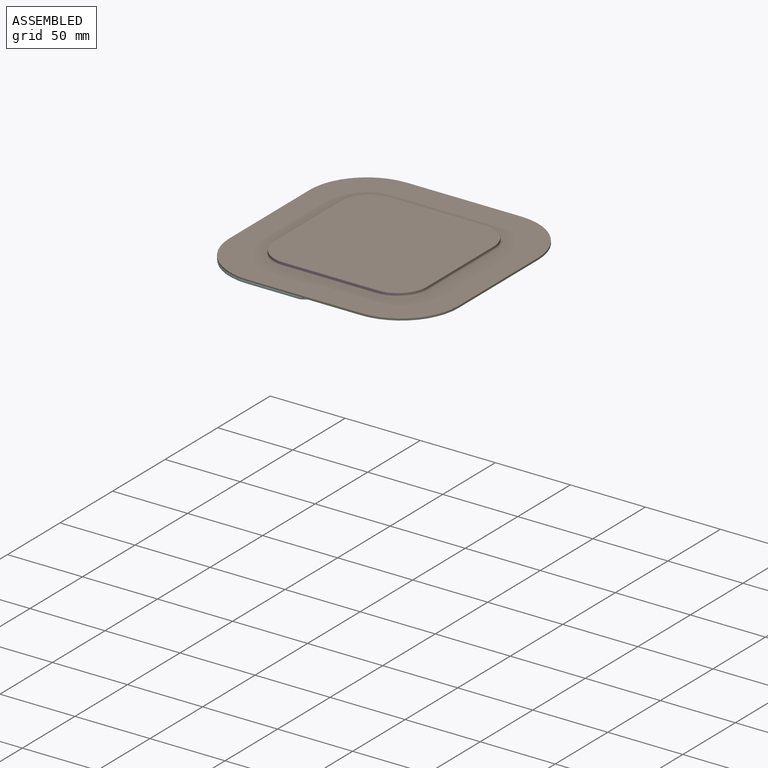
[diagram: assembled view]
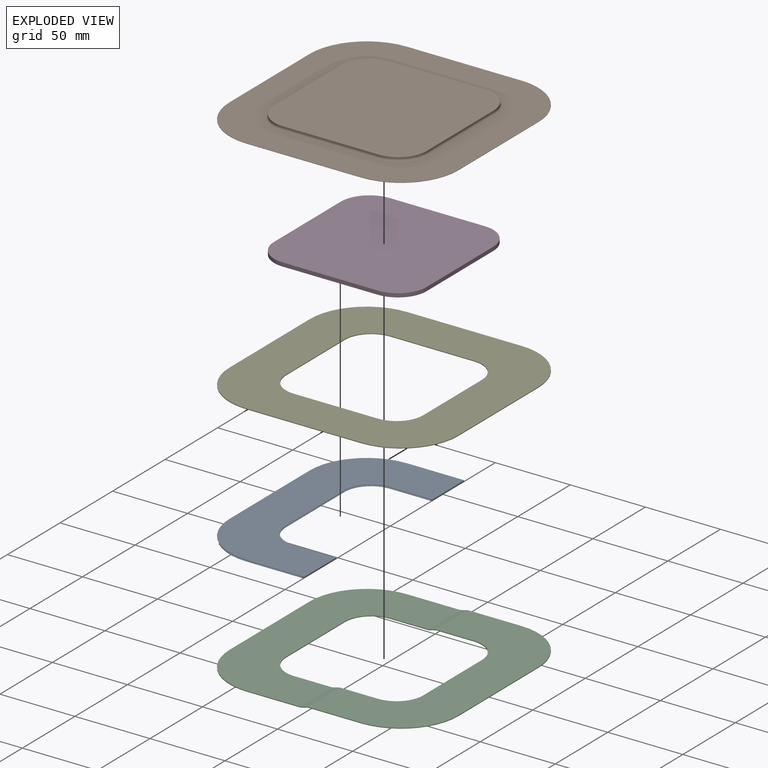
[diagram: exploded view]
GUIDED TOUR — MATED ASSEMBLY (Onshape document 73367925c3eeb1f5ac1c1983, AutoMate assembly 73367925c3eeb1f5ac1c1983_998282d3dac52252b863bf41_79ec40ff0eccfe6479f89f1b_default)

This assembly has 5 components, labeled P0..P4 below (a component is one placed occurrence of a part; the same part can appear more than once), held together by 4 mates. A mate is a constraint between two components; its type names the relative motion it leaves free:
  FASTENED — locks the two components together rigidly (no relative motion).
Axis/direction vectors are unit vectors and 'through' points are millimeter coordinates, both in the assembly's world frame.

MATES
  1. FASTENED "Fastened 1": P1 <-> P3, direction (0.000, 0.000, -1.000) through (-31.08, 50.90, 1.10) mm
  2. FASTENED "Fastened 3": P4 <-> P0, direction (0.000, 0.000, -1.000) through (-75.53, 38.46, -1.95) mm
  3. FASTENED "Fastened 2": P1 <-> P4, direction (0.000, 0.000, -1.000) through (-37.43, 76.56, -1.44) mm
  4. FASTENED "Fastened 4": P4 <-> P2, direction (0.000, 0.000, -1.000) through (76.87, 38.46, -1.95) mm

ASSEMBLY ORDER
  1. P3 — the base component [order verified]
  2. P1 [order verified]
  3. P4 [order verified]
  4. P0 [order verified]
  5. P2 [order verified]
(P1 verified with a relaxed clearance tolerance: the source model stores slight part interference there.)
Order-tag legend:
  [order verified] — this step's position reverses a verified removal order: the component was checked to insert without passing through the ones already placed.

Of the 5 components, 2 carry the full construction recipe — the FeatureScript program that regenerates the part's solid from scratch; the rest are supplied as boundary geometry only.
Each toured component is shown spotlighted twice — in the assembled view, then in the exploded view, where a leader line traces a displaced component back to its assembled socket (saturated green if recipe-attached, orange if geometry-only; every other component desaturated gray) — followed by its recipe or geometry summary and the mates that hold it.
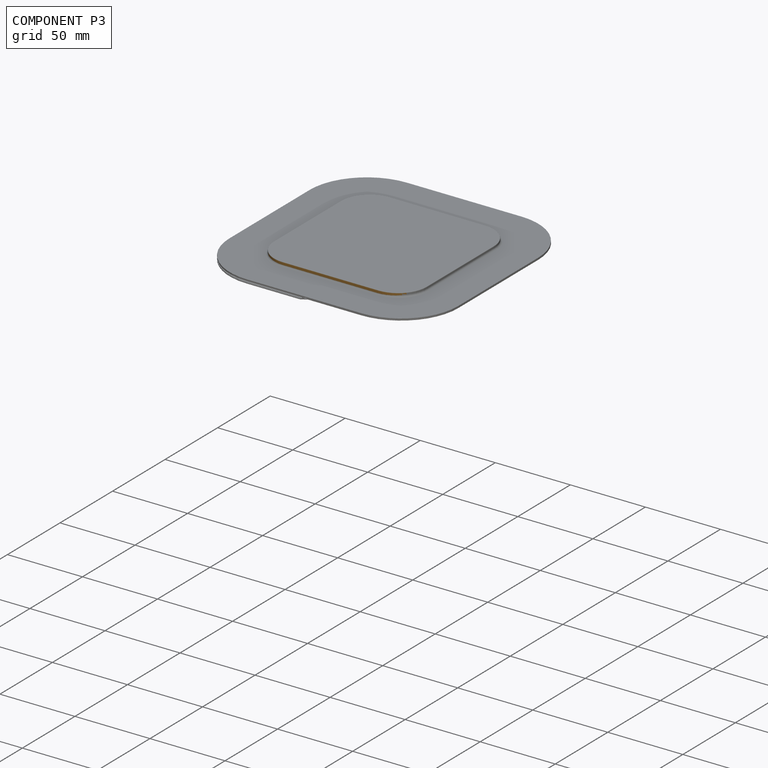
[diagram: component P3 — assembled]
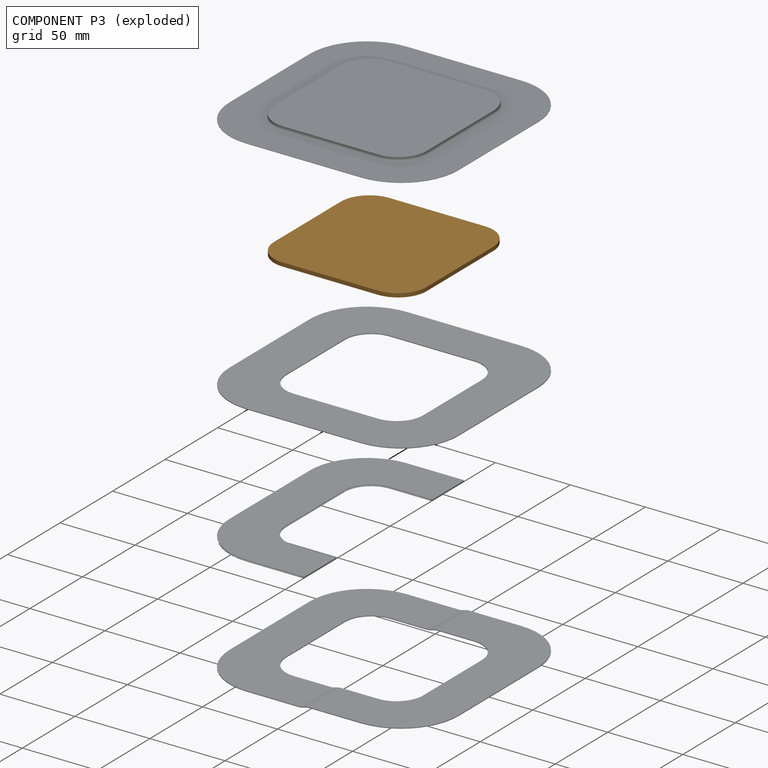
[diagram: component P3 — exploded]
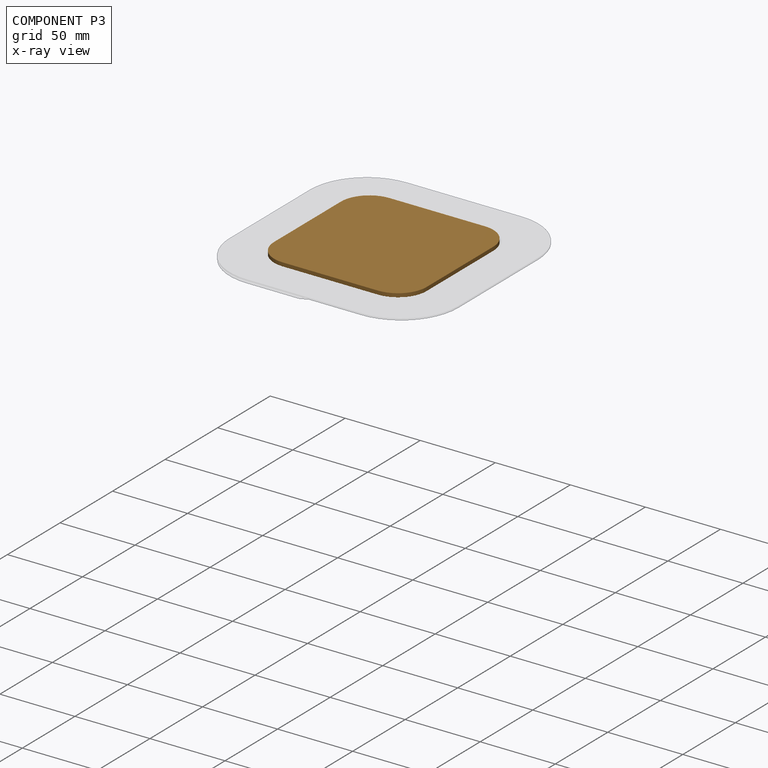
[diagram: component P3 — x-ray view]
COMPONENT P3 — geometry summary (no construction recipe available for this part):
  bounding box: 101.6 x 101.6 x 2.5 mm
  B-rep topology: 1 solid, 10 faces, 48 edges
  volume: 25428 mm^3 (97% of its bounding box)
  symmetry: 2-fold rotationally symmetric about the x axis; 2-fold rotationally symmetric about the y axis; 4-fold rotationally symmetric about the z axis; mirror-symmetric across its x mid-plane, y mid-plane, z mid-plane
Held by: FASTENED mate "Fastened 1" to P1.
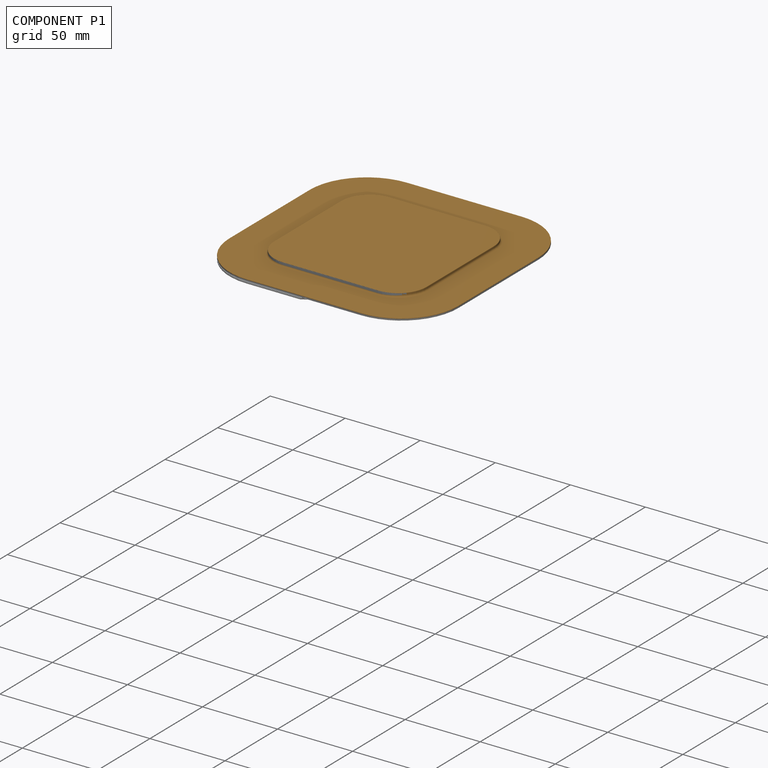
[diagram: component P1 — assembled]
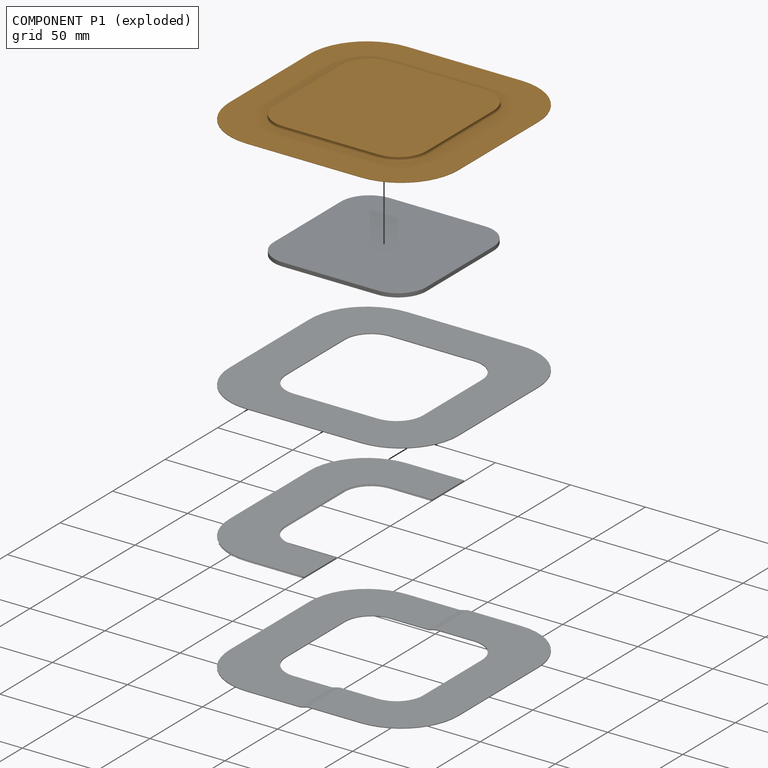
[diagram: component P1 — exploded]
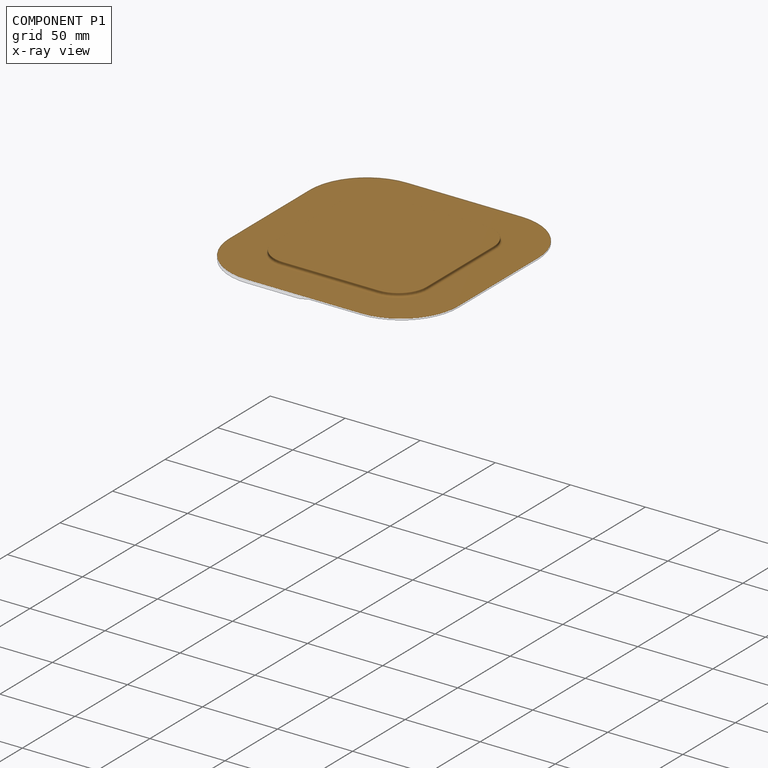
[diagram: component P1 — x-ray view]
COMPONENT P1 — geometry summary (no construction recipe available for this part):
  bounding box: 152.4 x 152.4 x 2.8 mm
  B-rep topology: 1 solid, 60 faces, 272 edges
  volume: 5714 mm^3 (9% of its bounding box)
  symmetry: 4-fold rotationally symmetric about the z axis; mirror-symmetric across its x mid-plane, y mid-plane
Held by: FASTENED mate "Fastened 1" to P3; FASTENED mate "Fastened 2" to P4.
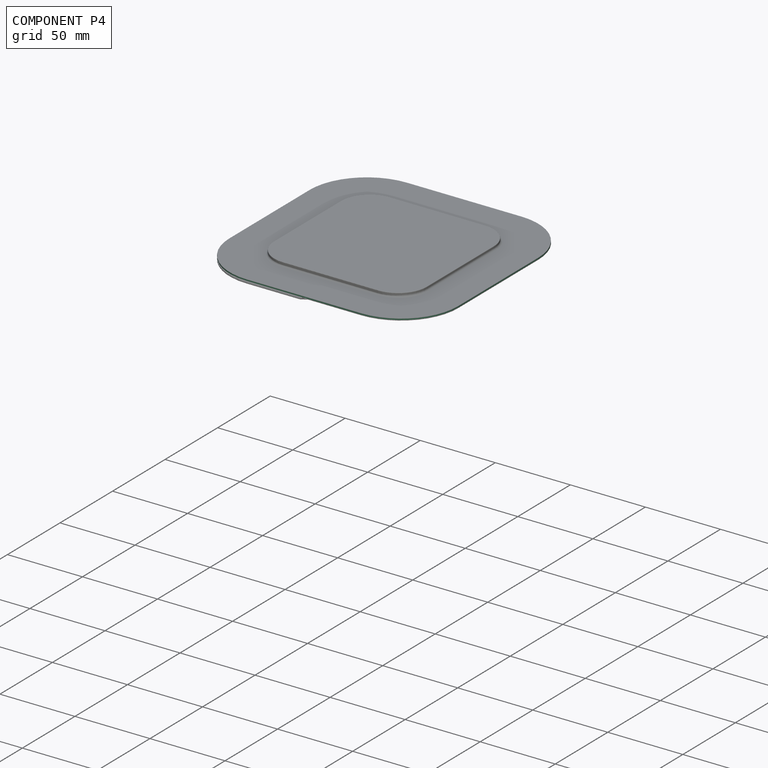
[diagram: component P4 — assembled]
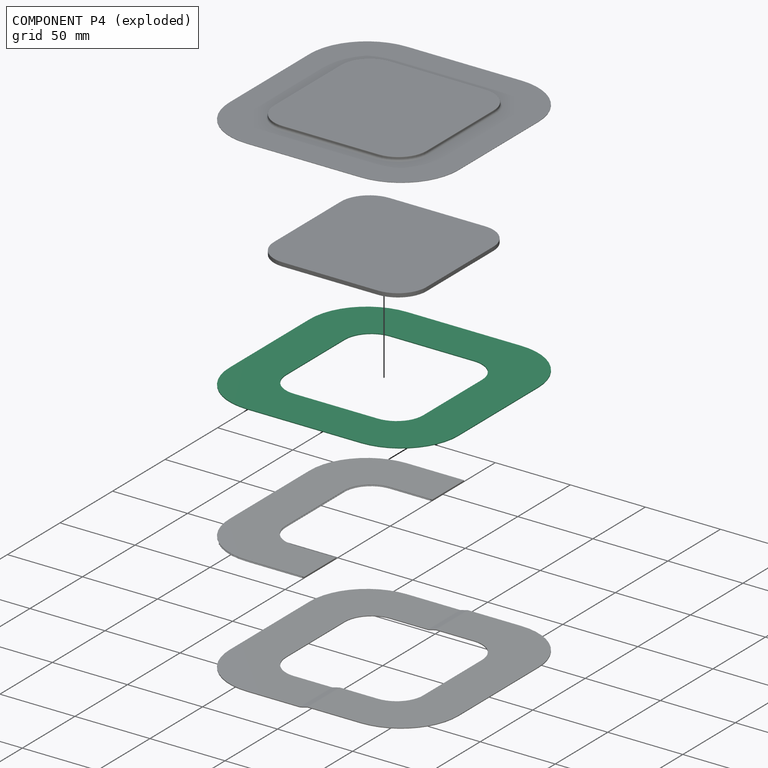
[diagram: component P4 — exploded]
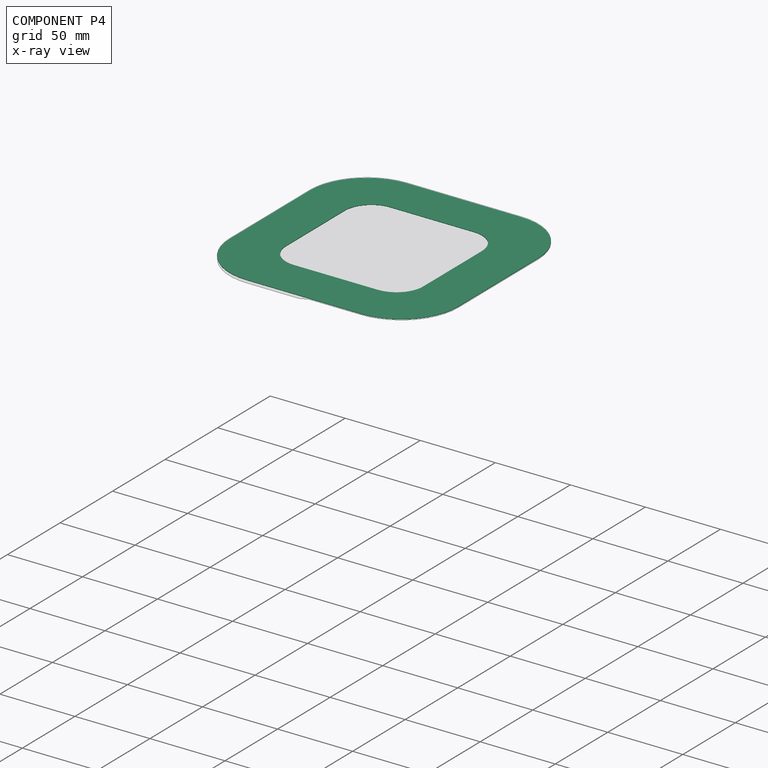
[diagram: component P4 — x-ray view]
COMPONENT P4 — recipe-attached (CADFS 00854232, mesh-verified: the recipe's output STEP matches this component's geometry to below the mesh-comparison resolution (tessellation chordal tolerance ~0.323 mm)).
Held by: FASTENED mate "Fastened 3" to P0; FASTENED mate "Fastened 2" to P1; FASTENED mate "Fastened 4" to P2.
Construction recipe (FeatureScript — the CAD program that rebuilds this solid; sketch coordinates are in the units given by the * unit suffixes, e.g. mm):

FeatureScript 1511;
import(path : "onshape/std/geometry.fs", version : "1511.0");
import(path : "onshape/std/common.fs", version : "1511.0");
const mm = millimeter;
const VERTEX = EntityType.VERTEX;
const EDGE = EntityType.EDGE;
const FACE = EntityType.FACE;
const BODY = EntityType.BODY;
function v(x, y){return vector(x, y);}
function OD(order){return orderDisambiguation(order);}
function OSD(set){return originalSetDisambiguation(set);}
function TD(topology){return topologyDisambiguation(topology);}
function TDD(query){return trueDependencyDisambiguation(query);}
function sQuery(a, b, c) {return sketchEntityQuery(a, b, c);}

annotation { "Feature Type Name" : "Feature", "Feature Type Description" : "" }
export const myFeature = defineFeature(function(context is Context, id is Id, definition is map)
    precondition{}
    {
        {
            var Q0;
            Q0=qCreatedBy(makeId("Top.planeOp"),FACE);
            var sketch = newSketch(context, id + "F0", { "sketchPlane" : qUnion([Q0])});
            skLineSegment(sketch, "E0.bottom", {"start": v(38.1, 76.2) * mm, "end": v(-38.1, 76.2) * mm});
            skLineSegment(sketch, "E0.top", {"start": v(38.1, -76.2) * mm, "end": v(-38.1, -76.2) * mm});
            skLineSegment(sketch, "E0.left", {"start": v(76.2, 38.1) * mm, "end": v(76.2, -38.1) * mm});
            skLineSegment(sketch, "E0.right", {"start": v(-76.2, 38.1) * mm, "end": v(-76.2, -38.1) * mm});
            skPoint(sketch, "E0.middle", {"position": v(0, 0) * mm});
            skPoint(sketch, "E1.visualSharp", {"position": v(-76.2, 76.2) * mm});
            skArc(sketch, "E1.filletArc", {"start": v(-38.1, 76.2) * mm, "mid": v(-65.04, 65.04) * mm, "end": v(-76.2, 38.1) * mm});
            skPoint(sketch, "E2.visualSharp", {"position": v(76.2, 76.2) * mm});
            skArc(sketch, "E2.filletArc", {"start": v(76.2, 38.1) * mm, "mid": v(65.04, 65.04) * mm, "end": v(38.1, 76.2) * mm});
            skPoint(sketch, "E3.visualSharp", {"position": v(76.2, -76.2) * mm});
            skArc(sketch, "E3.filletArc", {"start": v(38.1, -76.2) * mm, "mid": v(65.04, -65.04) * mm, "end": v(76.2, -38.1) * mm});
            skPoint(sketch, "E4.visualSharp", {"position": v(-76.2, -76.2) * mm});
            skArc(sketch, "E4.filletArc", {"start": v(-76.2, -38.1) * mm, "mid": v(-65.04, -65.04) * mm, "end": v(-38.1, -76.2) * mm});
            skLineSegment(sketch, "E5.bottom", {"start": v(27.94, 45.72) * mm, "end": v(-27.94, 45.72) * mm});
            skLineSegment(sketch, "E5.top", {"start": v(27.94, -45.72) * mm, "end": v(-27.94, -45.72) * mm});
            skLineSegment(sketch, "E5.left", {"start": v(45.72, 27.94) * mm, "end": v(45.72, -27.94) * mm});
            skLineSegment(sketch, "E5.right", {"start": v(-45.72, 27.94) * mm, "end": v(-45.72, -27.94) * mm});
            skPoint(sketch, "E6.visualSharp", {"position": v(-45.72, 45.72) * mm});
            skArc(sketch, "E6.filletArc", {"start": v(-27.94, 45.72) * mm, "mid": v(-40.51, 40.51) * mm, "end": v(-45.72, 27.94) * mm});
            skPoint(sketch, "E7.visualSharp", {"position": v(45.72, 45.72) * mm});
            skArc(sketch, "E7.filletArc", {"start": v(45.72, 27.94) * mm, "mid": v(40.51, 40.51) * mm, "end": v(27.94, 45.72) * mm});
            skPoint(sketch, "E8.visualSharp", {"position": v(45.72, -45.72) * mm});
            skArc(sketch, "E8.filletArc", {"start": v(27.94, -45.72) * mm, "mid": v(40.51, -40.51) * mm, "end": v(45.72, -27.94) * mm});
            skPoint(sketch, "E9.visualSharp", {"position": v(-45.72, -45.72) * mm});
            skArc(sketch, "E9.filletArc", {"start": v(-45.72, -27.94) * mm, "mid": v(-40.51, -40.51) * mm, "end": v(-27.94, -45.72) * mm});
            skSolve(sketch);
        }
        {
            var Q0;
            Q0 = qSketchRegion(id + "F0", true);
            extrude(context, id + "F1", {"entities" : qUnion([Q0]), "depth" : 0.5 * mm, "offsetDistance" : 25.4 * mm});
        }
    });
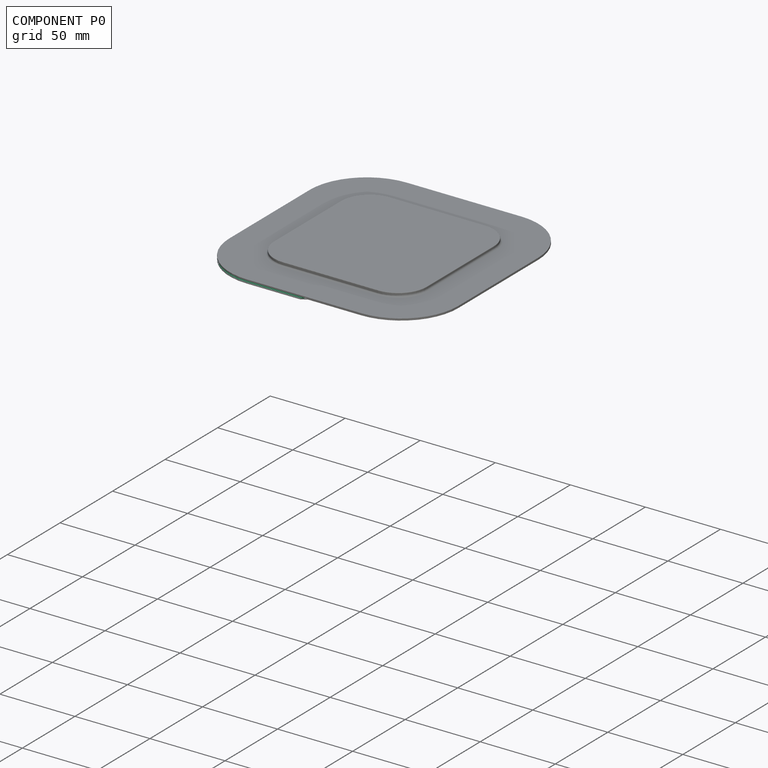
[diagram: component P0 — assembled]
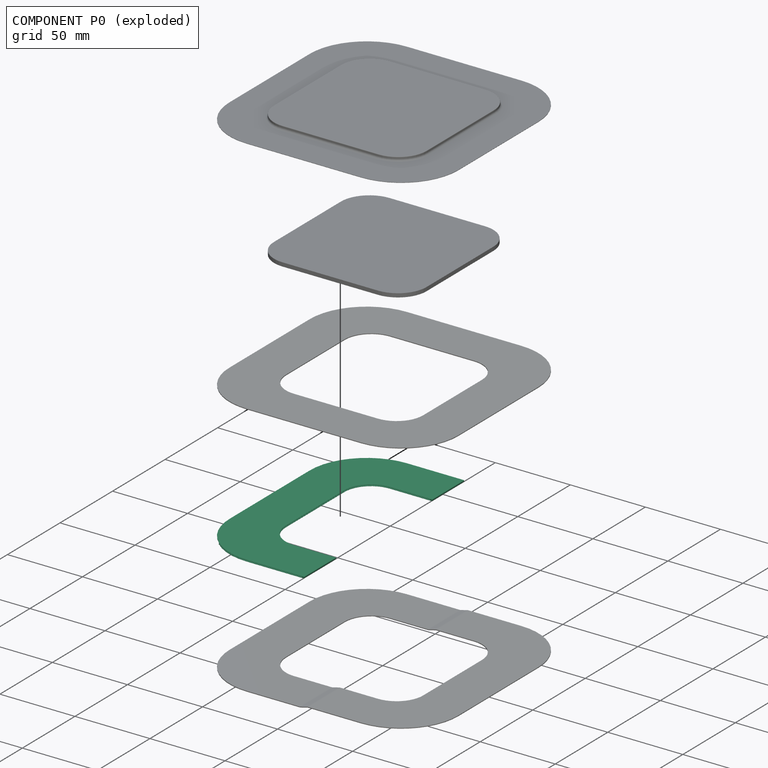
[diagram: component P0 — exploded]
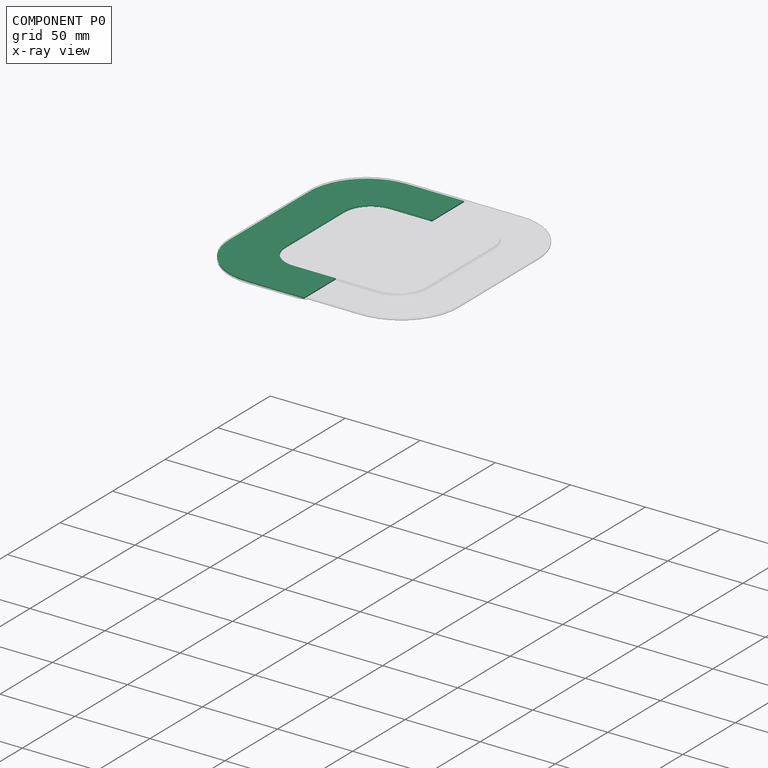
[diagram: component P0 — x-ray view]
COMPONENT P0 — recipe-attached (CADFS 00854233, mesh-verified: the recipe's output STEP matches this component's geometry to below the mesh-comparison resolution (tessellation chordal tolerance ~0.256 mm)).
Held by: FASTENED mate "Fastened 3" to P4.
Construction recipe (FeatureScript — the CAD program that rebuilds this solid; sketch coordinates are in the units given by the * unit suffixes, e.g. mm):

FeatureScript 1511;
import(path : "onshape/std/geometry.fs", version : "1511.0");
import(path : "onshape/std/common.fs", version : "1511.0");
const mm = millimeter;
const VERTEX = EntityType.VERTEX;
const EDGE = EntityType.EDGE;
const FACE = EntityType.FACE;
const BODY = EntityType.BODY;
function v(x, y){return vector(x, y);}
function OD(order){return orderDisambiguation(order);}
function OSD(set){return originalSetDisambiguation(set);}
function TD(topology){return topologyDisambiguation(topology);}
function TDD(query){return trueDependencyDisambiguation(query);}
function sQuery(a, b, c) {return sketchEntityQuery(a, b, c);}

annotation { "Feature Type Name" : "Feature", "Feature Type Description" : "" }
export const myFeature = defineFeature(function(context is Context, id is Id, definition is map)
    precondition{}
    {
        {
            var Q0;
            Q0=qCreatedBy(makeId("Top.planeOp"),FACE);
            var sketch = newSketch(context, id + "F0", { "sketchPlane" : qUnion([Q0])});
            skLineSegment(sketch, "E0.bottom", {"start": v(0, 93) * mm, "end": v(-38.1, 93) * mm});
            skLineSegment(sketch, "E0.top", {"start": v(0, -59.4) * mm, "end": v(-38.1, -59.4) * mm});
            skLineSegment(sketch, "E0.left", {"start": v(0, 93) * mm, "end": v(0, -59.4) * mm});
            skLineSegment(sketch, "E0.right", {"start": v(-76.2, 54.9) * mm, "end": v(-76.2, -21.3) * mm});
            skPoint(sketch, "E1.visualSharp", {"position": v(-76.2, 93) * mm});
            skArc(sketch, "E1.filletArc", {"start": v(-38.1, 93) * mm, "mid": v(-65.04, 81.85) * mm, "end": v(-76.2, 54.9) * mm});
            skPoint(sketch, "E2.visualSharp", {"position": v(-76.2, -59.4) * mm});
            skArc(sketch, "E2.filletArc", {"start": v(-76.2, -21.3) * mm, "mid": v(-65.04, -48.23) * mm, "end": v(-38.1, -59.4) * mm});
            skSolve(sketch);
        }
        {
            var Q0;
            Q0 = qSketchRegion(id + "F0", true);
            extrude(context, id + "F1", {"entities" : qUnion([Q0]), "depth" : 1.02 * mm, "offsetDistance" : 25.4 * mm});
        }
        {
            var Q0;
            Q0=makeQuery(id+"F1.opExtrude","SWEPT_FACE",FACE,{"disambiguationData":[OSD([sQuery(id+"F0.wireOp",EDGE,"E0.right")])]});
            var sketch = newSketch(context, id + "F2", { "sketchPlane" : qUnion([Q0])});
            skLineSegment(sketch, "E3.bottom", {"start": v(-98.4, 0.76) * mm, "end": v(61.62, 0.76) * mm});
            skLineSegment(sketch, "E3.top", {"start": v(-98.4, 0.25) * mm, "end": v(61.62, 0.25) * mm});
            skLineSegment(sketch, "E3.left", {"start": v(-98.4, 0.76) * mm, "end": v(-98.4, 0.25) * mm});
            skLineSegment(sketch, "E3.right", {"start": v(61.62, 0.76) * mm, "end": v(61.62, 0.25) * mm});
            skSolve(sketch);
        }
        {
            var Q0;
            Q0 = qSketchRegion(id + "F2", true);
            extrude(context, id + "F3", {"entities" : qUnion([Q0]), "operationType" : NewBodyOperationType.REMOVE, "oppositeDirection" : true, "depth" : 74.93 * mm, "offsetDistance" : 25.4 * mm});
        }
        {
            var Q0;
            Q0=makeQuery(id+"F1.opExtrude","CAP_FACE",FACE,{"disambiguationData":[OSD([sQuery(id+"F0.wireOp",EDGE,"E0.bottom"),sQuery(id+"F0.wireOp",EDGE,"E0.top"),sQuery(id+"F0.wireOp",EDGE,"E0.left"),sQuery(id+"F0.wireOp",EDGE,"E0.right"),sQuery(id+"F0.wireOp",EDGE,"E1.filletArc"),sQuery(id+"F0.wireOp",EDGE,"E2.filletArc")])],"isStart":false});
            var sketch = newSketch(context, id + "F4", { "sketchPlane" : qUnion([Q0])});
            skLineSegment(sketch, "E4.bottom", {"start": v(-98.2, 105.34) * mm, "end": v(-63.5, 105.34) * mm});
            skLineSegment(sketch, "E4.top", {"start": v(-98.2, -79.26) * mm, "end": v(-63.5, -79.26) * mm});
            skLineSegment(sketch, "E4.left", {"start": v(-98.2, 105.34) * mm, "end": v(-98.2, -79.26) * mm});
            skLineSegment(sketch, "E4.right", {"start": v(-63.5, 105.34) * mm, "end": v(-63.5, -79.26) * mm});
            skSolve(sketch);
        }
        {
            var Q0;
            Q0 = qSketchRegion(id + "F4", true);
            extrude(context, id + "F5", {"entities" : qUnion([Q0]), "operationType" : NewBodyOperationType.REMOVE, "oppositeDirection" : true, "depth" : 0.5 * mm, "offsetDistance" : 25.4 * mm});
        }
        {
            var Q0;
            Q0=makeQuery(id+"F1.opExtrude","CAP_EDGE",EDGE,{"disambiguationData":[OSD([sQuery(id+"F0.wireOp",EDGE,"E0.left")])],"isStart":false});
            fillet(context, id + "F6", {"entities" : qUnion([Q0]), "radius" : 0.25 * mm, "tangentPropagation" : true, "allowEdgeOverflow" : false});
        }
        {
            var Q0;
            Q0=makeQuery(id+"F1.opExtrude","CAP_EDGE",EDGE,{"disambiguationData":[OSD([sQuery(id+"F0.wireOp",EDGE,"E0.left")])],"isStart":true});
            fillet(context, id + "F7", {"entities" : qUnion([Q0]), "radius" : 0.25 * mm, "tangentPropagation" : true, "allowEdgeOverflow" : false});
        }
        {
            var Q0;
            Q0=makeQuery(id+"F1.opExtrude","CAP_FACE",FACE,{"disambiguationData":[OSD([sQuery(id+"F0.wireOp",EDGE,"E0.bottom"),sQuery(id+"F0.wireOp",EDGE,"E0.top"),sQuery(id+"F0.wireOp",EDGE,"E0.left"),sQuery(id+"F0.wireOp",EDGE,"E0.right"),sQuery(id+"F0.wireOp",EDGE,"E1.filletArc"),sQuery(id+"F0.wireOp",EDGE,"E2.filletArc")])],"isStart":false});
            var sketch = newSketch(context, id + "F8", { "sketchPlane" : qUnion([Q0])});
            skLineSegment(sketch, "E5.bottom", {"start": v(-28.2, 62.53) * mm, "end": v(40.76, 62.53) * mm});
            skLineSegment(sketch, "E5.top", {"start": v(-28.2, -28.91) * mm, "end": v(40.76, -28.91) * mm});
            skLineSegment(sketch, "E5.left", {"start": v(-45.97, 44.75) * mm, "end": v(-45.97, -11.13) * mm});
            skLineSegment(sketch, "E5.right", {"start": v(40.76, 62.53) * mm, "end": v(40.76, -28.91) * mm});
            skPoint(sketch, "E6.visualSharp", {"position": v(-45.97, 62.53) * mm});
            skArc(sketch, "E6.filletArc", {"start": v(-28.2, 62.53) * mm, "mid": v(-40.77, 57.32) * mm, "end": v(-45.97, 44.75) * mm});
            skPoint(sketch, "E7.visualSharp", {"position": v(-45.97, -28.91) * mm});
            skArc(sketch, "E7.filletArc", {"start": v(-45.97, -11.13) * mm, "mid": v(-40.77, -23.7) * mm, "end": v(-28.2, -28.91) * mm});
            skSolve(sketch);
        }
        {
            var Q0;
            Q0 = qSketchRegion(id + "F8", true);
            extrude(context, id + "F9", {"entities" : qUnion([Q0]), "operationType" : NewBodyOperationType.REMOVE, "endBound" : BoundingType.THROUGH_ALL, "oppositeDirection" : true, "depth" : 25.4 * mm, "offsetDistance" : 25.4 * mm});
        }
    });
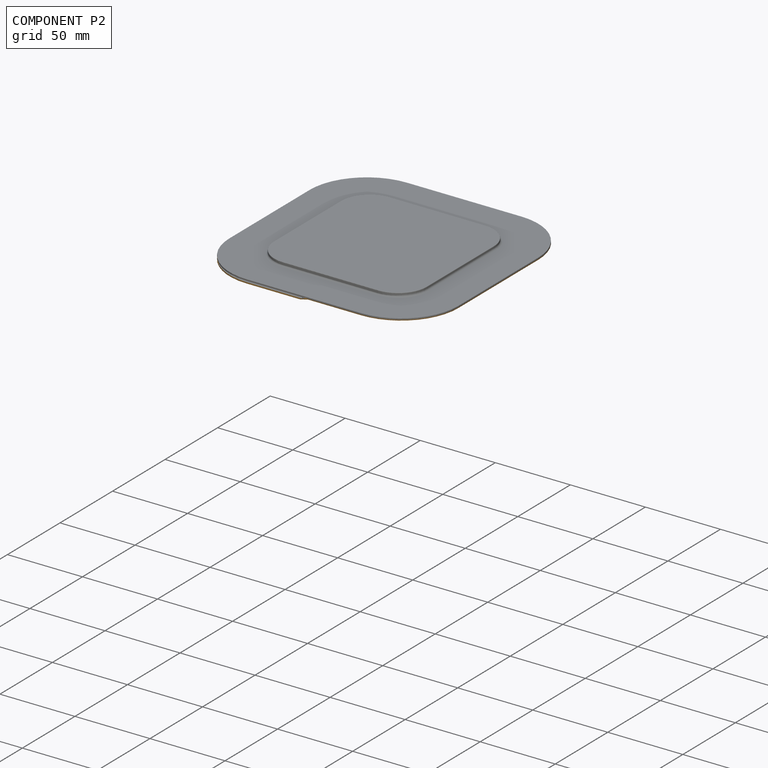
[diagram: component P2 — assembled]
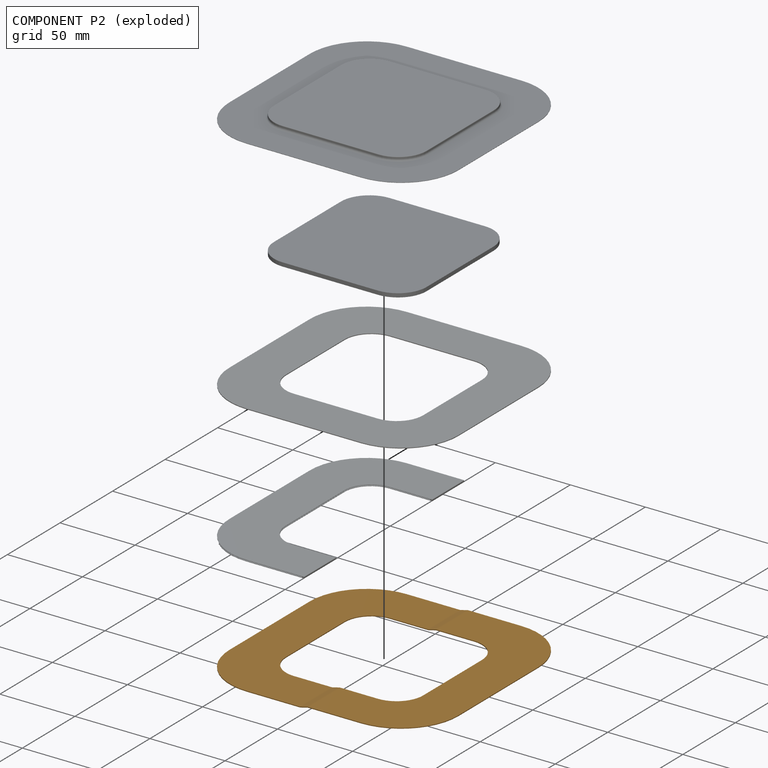
[diagram: component P2 — exploded]
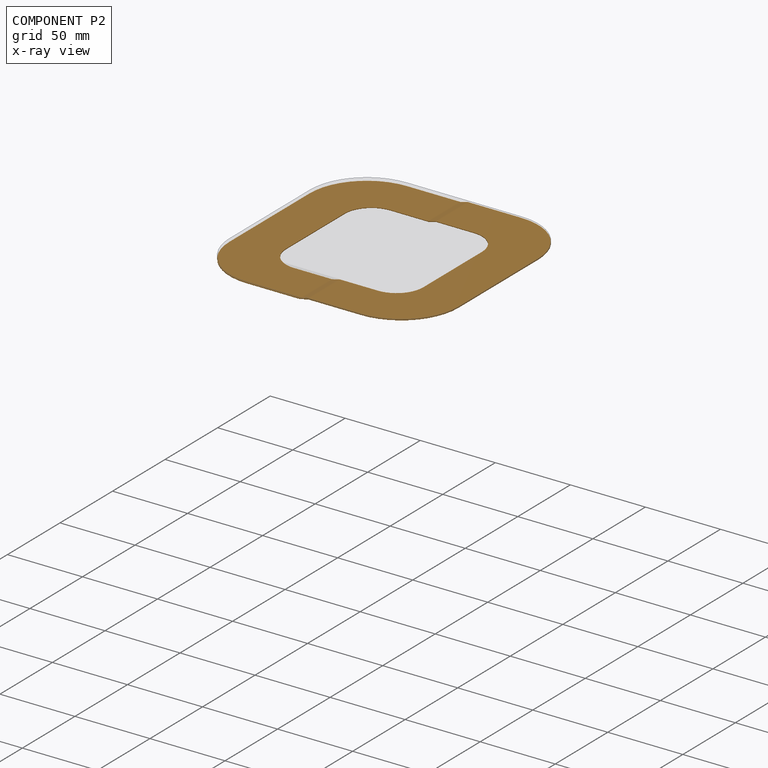
[diagram: component P2 — x-ray view]
COMPONENT P2 — geometry summary (no construction recipe available for this part):
  bounding box: 152.4 x 152.4 x 1.8 mm
  B-rep topology: 1 solid, 48 faces, 224 edges
  volume: 7061 mm^3 (17% of its bounding box)
  symmetry: 2-fold rotationally symmetric about the y axis; mirror-symmetric across its y mid-plane
Held by: FASTENED mate "Fastened 4" to P4.
PROVENANCE & LICENSES
Assembly (occurrences, transforms, mates, per-part STEP geometry): AutoMate dataset, Zenodo record 7776208, CC0.
Construction recipes: CADFS (HuggingFace VladPyatov/CADFS, CC-BY-4.0, layered over the ABC dataset), FeatureScript reconstruction programs keyed by ABC model id.
Join: ABC meta listings map ABC model id -> Onshape documentId; within a shared document, parts are matched by geometric signature (bounding-box dims + volume at 0.1% relative tolerance, exact B-rep face/solid counts).
Verification: 2 of this assembly's 5 components carry a recipe attachment, and every attachment is mesh-verified: the CADFS STEP and the AutoMate member STEP were compared as meshes in their shared local frame (symmetric sampled-point-to-mesh distance); worst across the 2 attachments: below the mesh-comparison resolution (tessellation chordal tolerance ~0.323 mm) on a 216 mm part.
Renders: orthographic iso camera (az 35 / el 25); the floor grid conveys scale (grid pitch printed in each image; no ruler). In the exploded view each component is displaced by its stored offset vector: the offsets alone carry the explosion direction (mate normal/axis signs are not orientation cues and do not encode it), and separation distances are assigned per mate-chain, not proportionally to assembly-order depth.
